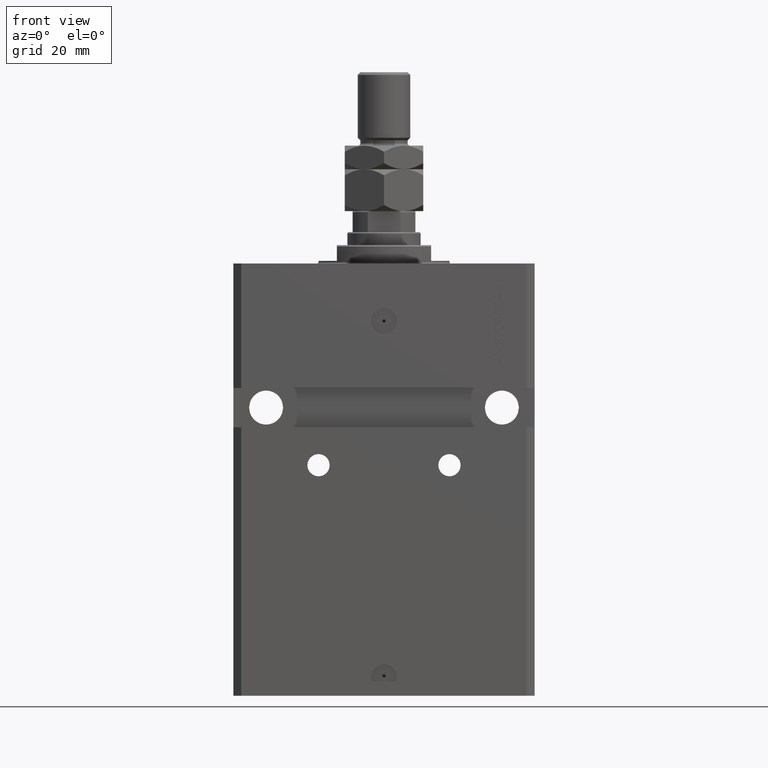
[diagram: clean part render]
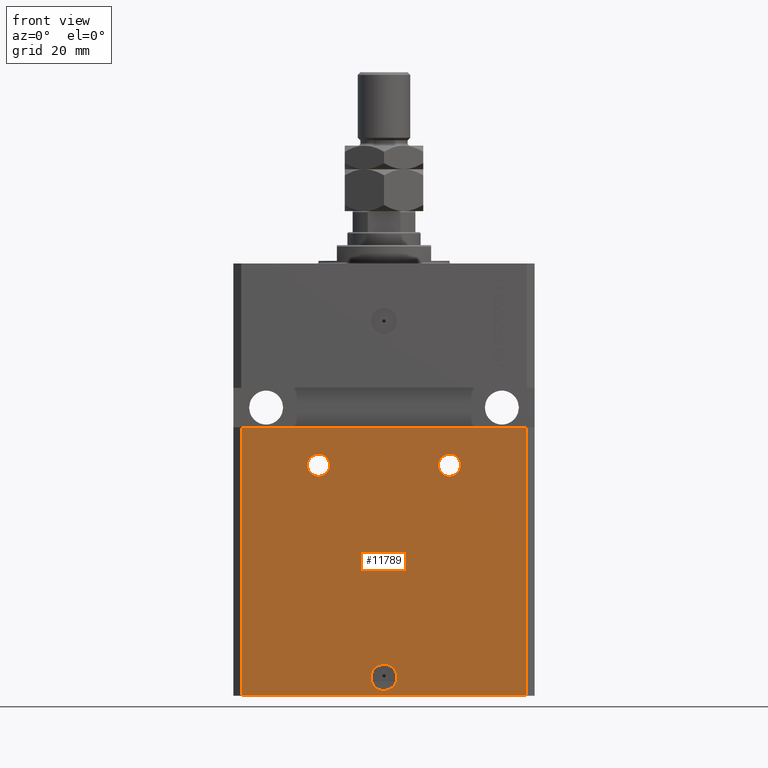
[diagram: same view with one face highlighted and labeled with its STEP entity id]
A machine part, front view. The second image highlights one B-rep face of the part: STEP entity #11789.
In plain terms, the highlighted planar face has unit normal (0, -1, 0).
Its self-contained STEP definition (entity closure, byte-faithful):
#1151 = DIRECTION ( 'NONE',  ( 1.176083712526788232E-16, -1.000000000000000000, 0.000000000000000000 ) ) ;
#2118 = DIRECTION ( 'NONE',  ( 1.176083712526788232E-16, -1.000000000000000000, 0.000000000000000000 ) ) ;
#2128 = EDGE_CURVE ( 'NONE', #47469, #25866, #30019, .T. ) ;
#2571 = CARTESIAN_POINT ( 'NONE',  ( -29.24999999998934186, -44.99999999999999289, -76.99999999999998579 ) ) ;
#2647 = ORIENTED_EDGE ( 'NONE', *, *, #7255, .T. ) ;
#3195 = CARTESIAN_POINT ( 'NONE',  ( -54.50000000000000711, -45.00000000000000000, -165.0000000000000000 ) ) ;
#3298 = FACE_BOUND ( 'NONE', #26036, .T. ) ;
#3487 = ORIENTED_EDGE ( 'NONE', *, *, #21110, .F. ) ;
#3816 = ORIENTED_EDGE ( 'NONE', *, *, #29061, .F. ) ;
#5582 = CIRCLE ( 'NONE', #38943, 4.249999999982822629 ) ;
#5690 = VERTEX_POINT ( 'NONE', #23420 ) ;
#5800 = CARTESIAN_POINT ( 'NONE',  ( -20.75000000002369305, -44.99999999999999289, -76.99999999999998579 ) ) ;
#6469 = AXIS2_PLACEMENT_3D ( 'NONE', #20569, #2118, #46598 ) ;
#7255 = EDGE_CURVE ( 'NONE', #25866, #38897, #34982, .T. ) ;
#8125 = VERTEX_POINT ( 'NONE', #2571 ) ;
#8161 = LINE ( 'NONE', #22227, #28940 ) ;
#8901 = CIRCLE ( 'NONE', #36824, 4.249999999982822629 ) ;
#9119 = DIRECTION ( 'NONE',  ( 1.176083712526788232E-16, -1.000000000000000000, 0.000000000000000000 ) ) ;
#9431 = DIRECTION ( 'NONE',  ( 1.176083712526788232E-16, -1.000000000000000000, 0.000000000000000000 ) ) ;
#9950 = VECTOR ( 'NONE', #20630, 1000.000000000000000 ) ;
#10589 = DIRECTION ( 'NONE',  ( 1.273191542001326317E-16, -1.000000000000000000, 0.000000000000000000 ) ) ;
#10884 = DIRECTION ( 'NONE',  ( 1.176083712526788232E-16, -1.000000000000000000, 0.000000000000000000 ) ) ;
#11789 = ADVANCED_FACE ( 'NONE', ( #47535, #14201, #3298, #29037 ), #43894, .T. ) ;
#12799 = DIRECTION ( 'NONE',  ( -1.000000000000000000, 0.000000000000000000, 0.000000000000000000 ) ) ;
#13060 = DIRECTION ( 'NONE',  ( 1.000000000000000000, 0.000000000000000000, 0.000000000000000000 ) ) ;
#13925 = CARTESIAN_POINT ( 'NONE',  ( -54.50000000000000711, -45.00000000000000000, -62.50000000000000000 ) ) ;
#14178 = CARTESIAN_POINT ( 'NONE',  ( 29.24999999998935252, -44.99999999999999289, -76.99999999999998579 ) ) ;
#14201 = FACE_BOUND ( 'NONE', #19473, .T. ) ;
#14343 = CARTESIAN_POINT ( 'NONE',  ( -5.000000000000000000, -44.99999999999999289, -158.0000000000000000 ) ) ;
#15077 = VECTOR ( 'NONE', #30270, 1000.000000000000000 ) ;
#17469 = VERTEX_POINT ( 'NONE', #14178 ) ;
#18217 = LINE ( 'NONE', #3195, #45174 ) ;
#19473 = EDGE_LOOP ( 'NONE', ( #3487, #36406 ) ) ;
#19674 = EDGE_CURVE ( 'NONE', #20378, #26430, #35813, .T. ) ;
#19682 = ORIENTED_EDGE ( 'NONE', *, *, #25928, .F. ) ;
#19746 = CARTESIAN_POINT ( 'NONE',  ( 54.50000000000000711, -44.99999999999998579, -165.0000000000000000 ) ) ;
#20378 = VERTEX_POINT ( 'NONE', #14343 ) ;
#20569 = CARTESIAN_POINT ( 'NONE',  ( 25.00000000000652989, -44.99999999999999289, -76.99999999999998579 ) ) ;
#20630 = DIRECTION ( 'NONE',  ( 0.000000000000000000, 0.000000000000000000, 1.000000000000000000 ) ) ;
#20707 = AXIS2_PLACEMENT_3D ( 'NONE', #44661, #10884, #36645 ) ;
#21110 = EDGE_CURVE ( 'NONE', #17469, #5690, #5582, .T. ) ;
#22227 = CARTESIAN_POINT ( 'NONE',  ( -57.50000000000002132, -45.00000000000000000, -62.50000000000000000 ) ) ;
#22272 = CIRCLE ( 'NONE', #30829, 5.000000000000006217 ) ;
#23325 = ORIENTED_EDGE ( 'NONE', *, *, #41325, .F. ) ;
#23420 = CARTESIAN_POINT ( 'NONE',  ( 20.75000000002370726, -44.99999999999999289, -76.99999999999998579 ) ) ;
#24530 = EDGE_CURVE ( 'NONE', #5690, #17469, #47567, .T. ) ;
#25397 = DIRECTION ( 'NONE',  ( 1.000000000000000000, 1.273191542001326317E-16, 0.000000000000000000 ) ) ;
#25866 = VERTEX_POINT ( 'NONE', #19746 ) ;
#25928 = EDGE_CURVE ( 'NONE', #47469, #28561, #18217, .T. ) ;
#26036 = EDGE_LOOP ( 'NONE', ( #41271, #23325 ) ) ;
#26177 = DIRECTION ( 'NONE',  ( 1.000000000000000000, 0.000000000000000000, 0.000000000000000000 ) ) ;
#26430 = VERTEX_POINT ( 'NONE', #45160 ) ;
#27855 = CARTESIAN_POINT ( 'NONE',  ( -25.00000000000651568, -44.99999999999999289, -76.99999999999998579 ) ) ;
#27888 = CARTESIAN_POINT ( 'NONE',  ( 54.50000000000000711, -44.99999999999998579, -62.49999999999999289 ) ) ;
#28561 = VERTEX_POINT ( 'NONE', #13925 ) ;
#28940 = VECTOR ( 'NONE', #33913, 1000.000000000000000 ) ;
#29037 = FACE_OUTER_BOUND ( 'NONE', #30968, .T. ) ;
#29061 = EDGE_CURVE ( 'NONE', #28561, #38897, #8161, .T. ) ;
#30019 = LINE ( 'NONE', #45371, #15077 ) ;
#30073 = CARTESIAN_POINT ( 'NONE',  ( 5.729361939005967538E-15, -44.99999999999999289, -158.0000000000000000 ) ) ;
#30270 = DIRECTION ( 'NONE',  ( 1.000000000000000000, 1.273191542001326317E-16, 0.000000000000000000 ) ) ;
#30829 = AXIS2_PLACEMENT_3D ( 'NONE', #30073, #41291, #26177 ) ;
#30968 = EDGE_LOOP ( 'NONE', ( #3816, #19682, #45139, #2647 ) ) ;
#31563 = CIRCLE ( 'NONE', #20707, 4.249999999982822629 ) ;
#31918 = EDGE_LOOP ( 'NONE', ( #31971, #43806 ) ) ;
#31971 = ORIENTED_EDGE ( 'NONE', *, *, #46145, .F. ) ;
#32721 = CARTESIAN_POINT ( 'NONE',  ( 25.00000000000652989, -44.99999999999999289, -76.99999999999998579 ) ) ;
#32928 = CARTESIAN_POINT ( 'NONE',  ( -54.50000000000000711, -45.00000000000000000, -165.0000000000000000 ) ) ;
#33009 = VERTEX_POINT ( 'NONE', #5800 ) ;
#33735 = CARTESIAN_POINT ( 'NONE',  ( -54.50000000000000711, -45.00000000000000000, -165.0000000000000000 ) ) ;
#33913 = DIRECTION ( 'NONE',  ( 1.000000000000000000, 1.206764157201257045E-16, 6.033820786006285224E-17 ) ) ;
#34290 = CARTESIAN_POINT ( 'NONE',  ( 5.729361939005967538E-15, -44.99999999999999289, -158.0000000000000000 ) ) ;
#34982 = LINE ( 'NONE', #42775, #9950 ) ;
#35813 = CIRCLE ( 'NONE', #36562, 5.000000000000006217 ) ;
#36026 = EDGE_CURVE ( 'NONE', #33009, #8125, #8901, .T. ) ;
#36406 = ORIENTED_EDGE ( 'NONE', *, *, #24530, .F. ) ;
#36562 = AXIS2_PLACEMENT_3D ( 'NONE', #34290, #9431, #13060 ) ;
#36645 = DIRECTION ( 'NONE',  ( -1.000000000000000000, 0.000000000000000000, 0.000000000000000000 ) ) ;
#36824 = AXIS2_PLACEMENT_3D ( 'NONE', #27855, #1151, #12799 ) ;
#38897 = VERTEX_POINT ( 'NONE', #27888 ) ;
#38943 = AXIS2_PLACEMENT_3D ( 'NONE', #32721, #9119, #46069 ) ;
#40367 = DIRECTION ( 'NONE',  ( 0.000000000000000000, 0.000000000000000000, 1.000000000000000000 ) ) ;
#41271 = ORIENTED_EDGE ( 'NONE', *, *, #36026, .F. ) ;
#41291 = DIRECTION ( 'NONE',  ( 1.176083712526788232E-16, -1.000000000000000000, 0.000000000000000000 ) ) ;
#41325 = EDGE_CURVE ( 'NONE', #8125, #33009, #31563, .T. ) ;
#42775 = CARTESIAN_POINT ( 'NONE',  ( 54.50000000000000711, -44.99999999999998579, -165.0000000000000000 ) ) ;
#43806 = ORIENTED_EDGE ( 'NONE', *, *, #19674, .F. ) ;
#43894 = PLANE ( 'NONE',  #44110 ) ;
#44110 = AXIS2_PLACEMENT_3D ( 'NONE', #32928, #10589, #25397 ) ;
#44661 = CARTESIAN_POINT ( 'NONE',  ( -25.00000000000651568, -44.99999999999999289, -76.99999999999998579 ) ) ;
#45139 = ORIENTED_EDGE ( 'NONE', *, *, #2128, .T. ) ;
#45160 = CARTESIAN_POINT ( 'NONE',  ( 5.000000000000012434, -44.99999999999999289, -158.0000000000000000 ) ) ;
#45174 = VECTOR ( 'NONE', #40367, 1000.000000000000000 ) ;
#45371 = CARTESIAN_POINT ( 'NONE',  ( -54.50000000000000711, -45.00000000000000000, -165.0000000000000000 ) ) ;
#46069 = DIRECTION ( 'NONE',  ( 1.000000000000000000, 0.000000000000000000, 0.000000000000000000 ) ) ;
#46145 = EDGE_CURVE ( 'NONE', #26430, #20378, #22272, .T. ) ;
#46598 = DIRECTION ( 'NONE',  ( 1.000000000000000000, 0.000000000000000000, 0.000000000000000000 ) ) ;
#47469 = VERTEX_POINT ( 'NONE', #33735 ) ;
#47535 = FACE_BOUND ( 'NONE', #31918, .T. ) ;
#47567 = CIRCLE ( 'NONE', #6469, 4.249999999982822629 ) ;